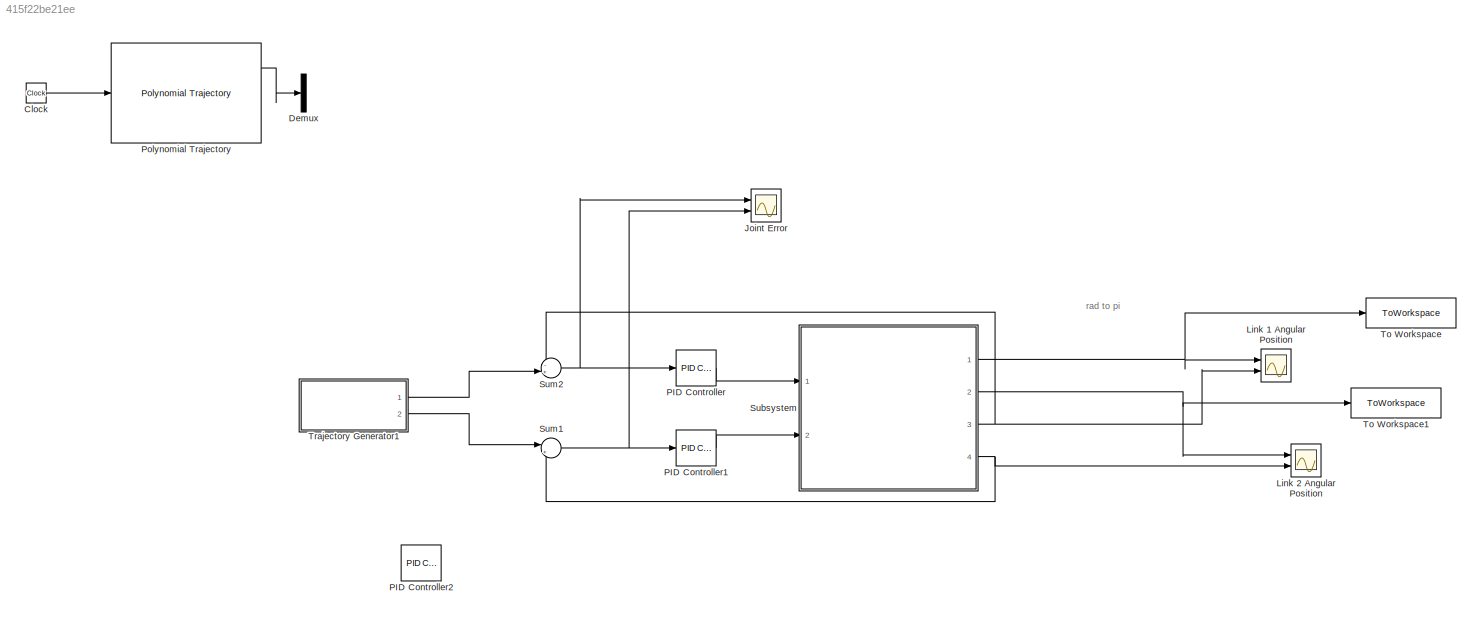
MODEL slx_415f22be21ee
KIND model
CONFIG AbsTol = auto
CONFIG EnableMultiTasking = off
CONFIG FixedStep = auto
CONFIG MaxStep = auto
CONFIG MinStep = auto
CONFIG RelTol = 1e-3
CONFIG SampleTimeConstraint = Unconstrained
CONFIG Solver = VariableStepAuto
CONFIG SolverName = VariableStepAuto
CONFIG StartTime = 0.0
CONFIG StopTime = 10
BLOCK [Clock] Clock
  Commented = on
BLOCK [Demux] Demux
  Commented = on
  DisplayOption = bar
  Outputs = 2
  Ports = [1, 2]
BLOCK [Scope] Joint Error
  Floating = off
  NumInputPorts = 2
  Ports = [2]
  ScopeSpecificationString = Simulink.scopes.TimeScopeBlockCfg('CurrentConfiguration', extmgr.ConfigurationSet(extmgr.Configuration('Core','General UI',true,'FigureColor',[1 1 1]),extmgr.Configuration('Core','Source UI',true),extmgr.Configuration('Sources','WiredSimulink',true,'DataLoggingVariableName','ScopeData1'),extmgr.Configuration('Visuals','Time Domain',true,'SerializedDisplays',{struct('MinYLimReal','-0.09828','MaxYLi...<+1828ch>
BLOCK [Scope] Link 1 Angular Position
  Floating = off
  NumInputPorts = 2
  Ports = [2]
  ScopeSpecificationString = Simulink.scopes.TimeScopeBlockCfg('CurrentConfiguration', extmgr.ConfigurationSet(extmgr.Configuration('Core','General UI',true,'FigureColor',[1 1 1]),extmgr.Configuration('Core','Source UI',true),extmgr.Configuration('Sources','WiredSimulink',true,'DataLoggingVariableName','ScopeData2'),extmgr.Configuration('Visuals','Time Domain',true,'SerializedDisplays',{struct('MinYLimReal','-0.09823','MaxYLi...<+1802ch>
BLOCK [Scope] Link 2 Angular Position
  Floating = off
  NumInputPorts = 2
  Ports = [2]
  ScopeSpecificationString = Simulink.scopes.TimeScopeBlockCfg('CurrentConfiguration', extmgr.ConfigurationSet(extmgr.Configuration('Core','General UI',true,'FigureColor',[1 1 1]),extmgr.Configuration('Core','Source UI',true),extmgr.Configuration('Sources','WiredSimulink',true),extmgr.Configuration('Visuals','Time Domain',true,'SerializedDisplays',{struct('MinYLimReal','-0.09818','MaxYLimReal','0.88364','YLabelReal','','MinYL...<+1792ch>
BLOCK [Reference] PID Controller  REF=simulink/Continuous/PID Controller
  Ports = [1, 1]
  SourceBlock = simulink/Continuous/PID Controller
  SourceProductBaseCode = SL
  SourceProductName = Simulink
  SourceType = PID 1dof
BLOCK [Reference] PID Controller1  REF=simulink/Continuous/PID Controller
  Ports = [1, 1]
  SourceBlock = simulink/Continuous/PID Controller
  SourceProductBaseCode = SL
  SourceProductName = Simulink
  SourceType = PID 1dof
BLOCK [Reference] PID Controller2  REF=simulink/Continuous/PID Controller
  Commented = on
  Ports = [1, 1]
  SourceBlock = simulink/Continuous/PID Controller
  SourceProductBaseCode = SL
  SourceProductName = Simulink
  SourceType = PID 1dof
BLOCK [Reference] Polynomial Trajectory  REF=robotcorelib/Polynomial Trajectory
  Commented = on
  Ports = [1, 3]
  SourceBlock = robotcorelib/Polynomial Trajectory
  SourceProductBaseCode = RO
  SourceProductName = Robotics System Toolbox
  SourceType = robotics.slcore.internal.block.PolyTrajSys
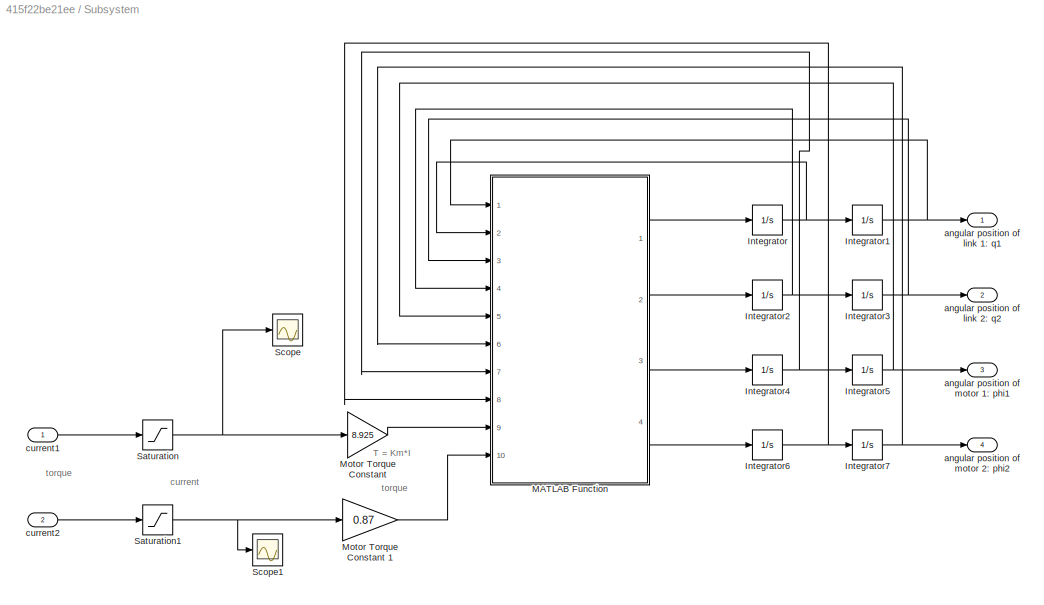
BLOCK [SubSystem] Subsystem
  Ports = [2, 4]
  RequestExecContextInheritance = off
BLOCK [Integrator] Subsystem/Integrator
  Ports = [1, 1]
BLOCK [Integrator] Subsystem/Integrator1
  Ports = [1, 1]
BLOCK [Integrator] Subsystem/Integrator2
  Ports = [1, 1]
BLOCK [Integrator] Subsystem/Integrator3
  Ports = [1, 1]
BLOCK [Integrator] Subsystem/Integrator4
  Ports = [1, 1]
BLOCK [Integrator] Subsystem/Integrator5
  Ports = [1, 1]
BLOCK [Integrator] Subsystem/Integrator6
  Ports = [1, 1]
BLOCK [Integrator] Subsystem/Integrator7
  Ports = [1, 1]
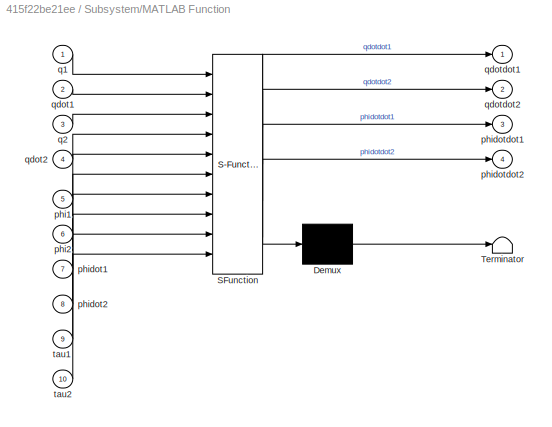
BLOCK [SubSystem] Subsystem/MATLAB Function
  ErrorFcn = Stateflow.Translate.translate
  PermitHierarchicalResolution = ExplicitOnly
  Ports = [10, 4]
  RequestExecContextInheritance = off
  SFBlockType = MATLAB Function
  TreatAsAtomicUnit = on
BLOCK [Demux] Subsystem/MATLAB Function/ Demux 
  Outputs = 1
  Ports = [1, 1]
BLOCK [S-Function] Subsystem/MATLAB Function/ SFunction 
  EnableBusSupport = on
  FunctionName = sf_sfun
  PortCounts = [10 5]
  Ports = [10, 5]
  SFcnIsStateOwnerBlock = off
  SFunctionDeploymentMode = off
  Tag = Stateflow S-Function 2
BLOCK [Terminator] Subsystem/MATLAB Function/ Terminator 
BLOCK [Inport] Subsystem/MATLAB Function/phi1
  IconDisplay = Port number
  Port = 5
BLOCK [Inport] Subsystem/MATLAB Function/phi2
  IconDisplay = Port number
  Port = 6
BLOCK [Inport] Subsystem/MATLAB Function/phidot1
  IconDisplay = Port number
  Port = 7
BLOCK [Inport] Subsystem/MATLAB Function/phidot2
  IconDisplay = Port number
  Port = 8
BLOCK [Outport] Subsystem/MATLAB Function/phidotdot1
  IconDisplay = Port number
  Port = 3
BLOCK [Outport] Subsystem/MATLAB Function/phidotdot2
  IconDisplay = Port number
  Port = 4
BLOCK [Inport] Subsystem/MATLAB Function/q1
  IconDisplay = Port number
BLOCK [Inport] Subsystem/MATLAB Function/q2
  IconDisplay = Port number
  Port = 3
BLOCK [Inport] Subsystem/MATLAB Function/qdot1
  IconDisplay = Port number
  Port = 2
BLOCK [Inport] Subsystem/MATLAB Function/qdot2
  IconDisplay = Port number
  Port = 4
BLOCK [Outport] Subsystem/MATLAB Function/qdotdot1
  IconDisplay = Port number
BLOCK [Outport] Subsystem/MATLAB Function/qdotdot2
  IconDisplay = Port number
  Port = 2
BLOCK [Inport] Subsystem/MATLAB Function/tau1
  IconDisplay = Port number
  Port = 9
BLOCK [Inport] Subsystem/MATLAB Function/tau2
  IconDisplay = Port number
  Port = 10
BLOCK [Gain] Subsystem/Motor Torque Constant 
  Gain = 8.925
  OutDataTypeStr = Inherit: Inherit via internal rule
  ParamDataTypeStr = Inherit: Inherit via internal rule
  SaturateOnIntegerOverflow = off
BLOCK [Gain] Subsystem/Motor Torque Constant 1
  Gain = 0.87
  OutDataTypeStr = Inherit: Inherit via internal rule
  ParamDataTypeStr = Inherit: Inherit via internal rule
  SaturateOnIntegerOverflow = off
BLOCK [Saturate] Subsystem/Saturation
  InputPortMap = u0
  LowerLimit = -1
  Ports = [1, 1]
  UpperLimit = 1
BLOCK [Saturate] Subsystem/Saturation1
  InputPortMap = u0
  Ports = [1, 1]
BLOCK [Scope] Subsystem/Scope
  Floating = off
  NumInputPorts = 1
  Ports = [1]
  ScopeSpecificationString = Simulink.scopes.TimeScopeBlockCfg('CurrentConfiguration', extmgr.ConfigurationSet(extmgr.Configuration('Core','General UI',true),extmgr.Configuration('Core','Source UI',true),extmgr.Configuration('Sources','WiredSimulink',true,'DataLoggingVariableName','ScopeData1'),extmgr.Configuration('Visuals','Time Domain',true,'SerializedDisplays',{struct('MinYLimReal','-0.12506','MaxYLimReal','1.12501','YLab...<+1369ch>
BLOCK [Scope] Subsystem/Scope1
  Floating = off
  NumInputPorts = 1
  Ports = [1]
  ScopeSpecificationString = Simulink.scopes.TimeScopeBlockCfg('CurrentConfiguration', extmgr.ConfigurationSet(extmgr.Configuration('Core','General UI',true),extmgr.Configuration('Core','Source UI',true),extmgr.Configuration('Sources','WiredSimulink',true,'DataLoggingVariableName','ScopeData2'),extmgr.Configuration('Visuals','Time Domain',true,'SerializedDisplays',{struct('MinYLimReal','-0.06251','MaxYLimReal','0.5625','YLabe...<+1366ch>
BLOCK [Outport] Subsystem/angular position of link 1: q1
  IconDisplay = Port number
BLOCK [Outport] Subsystem/angular position of link 2: q2
  IconDisplay = Port number
  Port = 2
BLOCK [Outport] Subsystem/angular position of motor 1: phi1
  IconDisplay = Port number
  Port = 3
BLOCK [Outport] Subsystem/angular position of motor 2: phi2
  IconDisplay = Port number
  Port = 4
BLOCK [Inport] Subsystem/current1
  IconDisplay = Port number
BLOCK [Inport] Subsystem/current2 
  IconDisplay = Port number
  Port = 2
BLOCK [Sum] Sum1
  IconShape = round
  InputSameDT = off
  Inputs = |+-
  OutDataTypeStr = Inherit: Inherit via internal rule
  Ports = [2, 1]
  SaturateOnIntegerOverflow = off
BLOCK [Sum] Sum2
  IconShape = round
  InputSameDT = off
  Inputs = -+|
  OutDataTypeStr = Inherit: Inherit via internal rule
  Ports = [2, 1]
  SaturateOnIntegerOverflow = off
BLOCK [ToWorkspace] To Workspace
  FixptAsFi = on
  MaxDataPoints = inf
  Ports = [1]
  SampleTime = -1
  SaveFormat = Timeseries
  VariableName = stage1
BLOCK [ToWorkspace] To Workspace1
  FixptAsFi = on
  MaxDataPoints = inf
  Ports = [1]
  SampleTime = -1
  SaveFormat = Timeseries
  VariableName = stage2
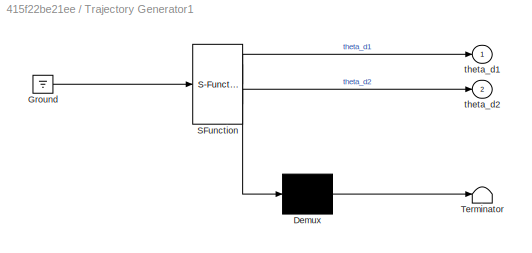
BLOCK [SubSystem] Trajectory Generator1
  ErrorFcn = Stateflow.Translate.translate
  PermitHierarchicalResolution = ExplicitOnly
  Ports = [0, 2]
  RequestExecContextInheritance = off
  SFBlockType = MATLAB Function
  TreatAsAtomicUnit = on
BLOCK [Demux] Trajectory Generator1/ Demux 
  Outputs = 1
  Ports = [1, 1]
BLOCK [Ground] Trajectory Generator1/ Ground 
BLOCK [S-Function] Trajectory Generator1/ SFunction 
  EnableBusSupport = on
  FunctionName = sf_sfun
  PortCounts = [1 3]
  Ports = [1, 3]
  SFcnIsStateOwnerBlock = off
  SFunctionDeploymentMode = off
  Tag = Stateflow S-Function 1
BLOCK [Terminator] Trajectory Generator1/ Terminator 
BLOCK [Outport] Trajectory Generator1/theta_d1
  IconDisplay = Port number
BLOCK [Outport] Trajectory Generator1/theta_d2
  IconDisplay = Port number
  Port = 2
ANNOTATION (root): rad to pi
ANNOTATION Subsystem: T = Km*I
ANNOTATION Subsystem: current
ANNOTATION Subsystem: torque
LINE Clock:1 -> Polynomial Trajectory:1
LINE PID Controller1:1 -> Subsystem:2
LINE PID Controller:1 -> Subsystem:1
LINE Polynomial Trajectory:1 -> Demux:1
NET Subsystem/Integrator1:1 -> Subsystem/MATLAB Function:1, Subsystem/angular position of link 1: q1:1
NET Subsystem/Integrator2:1 -> Subsystem/Integrator3:1, Subsystem/MATLAB Function:4
NET Subsystem/Integrator3:1 -> Subsystem/MATLAB Function:3, Subsystem/angular position of link 2: q2:1
NET Subsystem/Integrator4:1 -> Subsystem/Integrator5:1, Subsystem/MATLAB Function:7
NET Subsystem/Integrator5:1 -> Subsystem/MATLAB Function:5, Subsystem/angular position of motor 1: phi1:1
NET Subsystem/Integrator6:1 -> Subsystem/Integrator7:1, Subsystem/MATLAB Function:8
NET Subsystem/Integrator7:1 -> Subsystem/MATLAB Function:6, Subsystem/angular position of motor 2: phi2:1
NET Subsystem/Integrator:1 -> Subsystem/Integrator1:1, Subsystem/MATLAB Function:2
LINE Subsystem/MATLAB Function:1 -> Subsystem/Integrator:1
LINE Subsystem/MATLAB Function:2 -> Subsystem/Integrator2:1
LINE Subsystem/MATLAB Function:3 -> Subsystem/Integrator4:1
LINE Subsystem/MATLAB Function:4 -> Subsystem/Integrator6:1
LINE Subsystem/Motor Torque Constant 1:1 -> Subsystem/MATLAB Function:10
LINE Subsystem/Motor Torque Constant :1 -> Subsystem/MATLAB Function:9
NET Subsystem/Saturation1:1 -> Subsystem/Motor Torque Constant 1:1, Subsystem/Scope1:1
NET Subsystem/Saturation:1 -> Subsystem/Motor Torque Constant :1, Subsystem/Scope:1
LINE Subsystem/current1:1 -> Subsystem/Saturation:1
LINE Subsystem/current2 :1 -> Subsystem/Saturation1:1
NET Subsystem:1 -> Link 1 Angular Position:1, To Workspace:1
NET Subsystem:2 -> Link 2 Angular Position:1, To Workspace1:1
NET Subsystem:3 -> Link 1 Angular Position:2, Sum2:1
NET Subsystem:4 -> Link 2 Angular Position:2, Sum1:2
NET Sum1:1 -> Joint Error:2, PID Controller1:1
NET Sum2:1 -> Joint Error:1, PID Controller:1
LINE Trajectory Generator1:1 -> Sum2:2
LINE Trajectory Generator1:2 -> Sum1:1
note: NET lines group one-source signal fan-out (src -> all destinations, sorted); 1:1 wires keep LINE
CHART Trajectory Generator1 states=1 transitions=1
  STATE_LABEL 'eML_blk_kernel()'
  STATE_LABEL 'SCRIPT:\nfunction [theta_d1,theta_d2]  = fcn\ntheta_start1 = 0;\ntheta_start2 = 0;\ntheta_end1 = pi/4;\ntheta_end2 = pi/4;\ntheta_d1 = theta_start1 + (theta_end1-theta_start1);\ntheta_d2 = theta_start2 + (theta_end2-theta_start2);\n'
CHART Subsystem/MATLAB Function states=1 transitions=1
  STATE_LABEL 'eML_blk_kernel()'
  STATE_LABEL 'SCRIPT:\nfunction [qdotdot1,qdotdot2,phidotdot1,phidotdot2] = fcn(q1,qdot1,q2,qdot2,phi1,phi2,phidot1,phidot2,tau1,tau2)\n%y is thetadotdot\ntau = [0;0;tau1;tau2];\n%Veltman Thesis Values\n% m1 = 0.5; \n% m2 = 1;\n% L1 = 0.343;\n% L2 = 0.267;\n% Lc1 = 0.2;\n% Lc2 = 0.25;\n% I1 = 0.01;\n% I2 = 0.01;\n% B1 = 0.070364;\n% B2 = 0.028211;\n\n%Electrical School values\nL1 = 0.343;\nL2 = 0.267;\nLc1 = 0.1590;\nLc2 = 0.0550;...<+936ch>'
